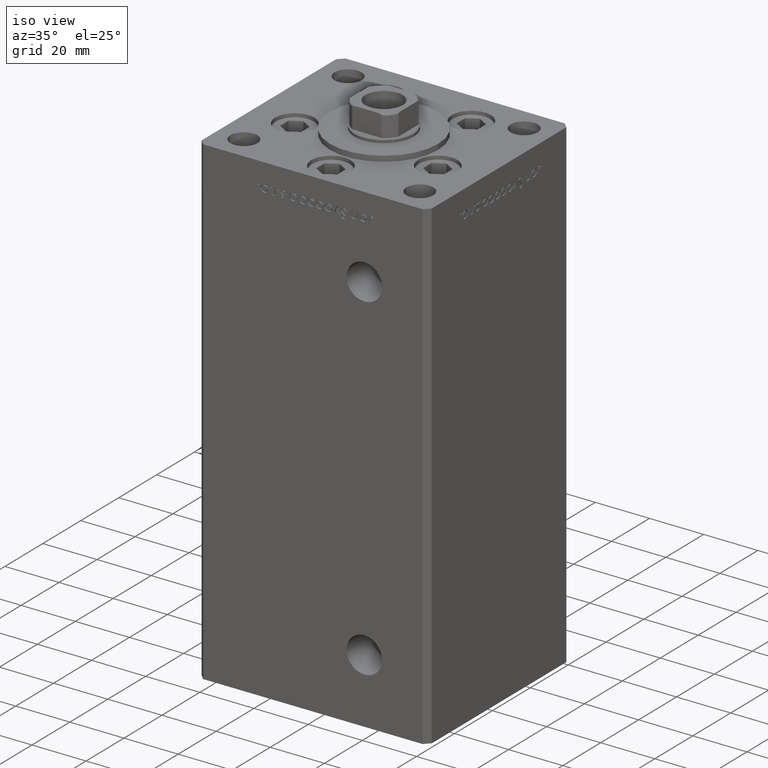
[diagram: clean part render]
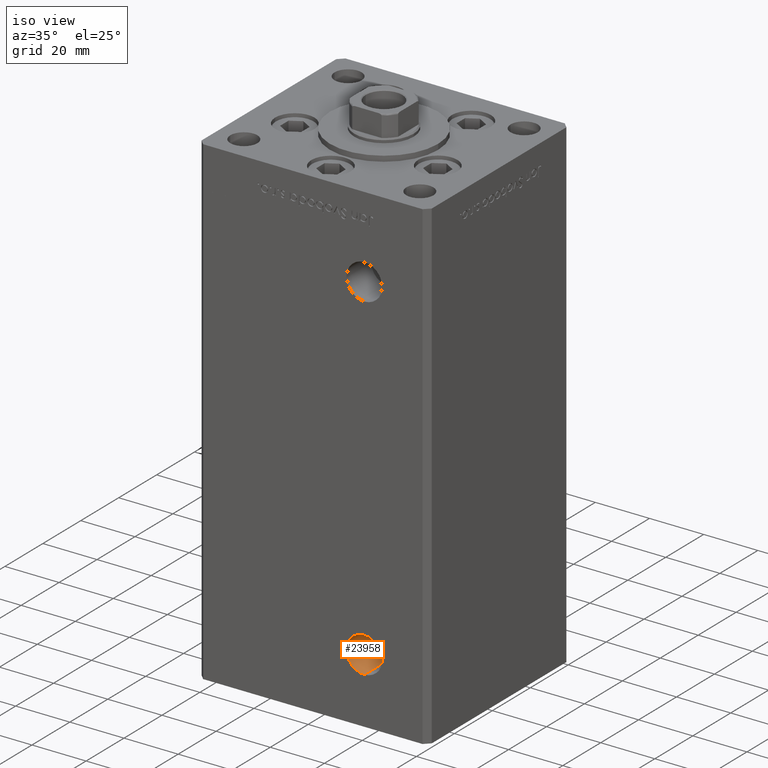
[diagram: same view with one face highlighted and labeled with its STEP entity id]
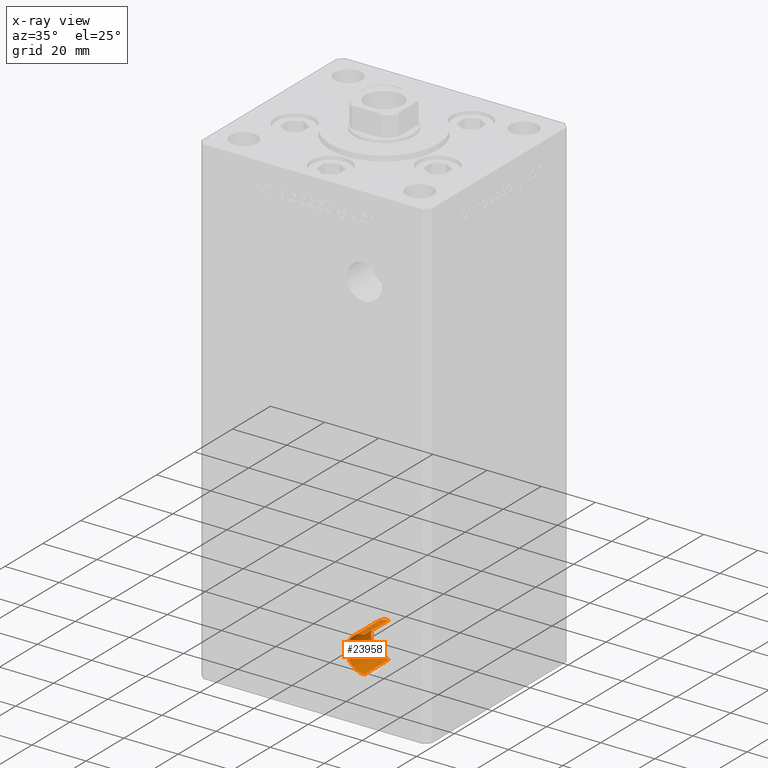
[diagram: x-ray of the same camera — body ghosted, the highlighted face saturated]
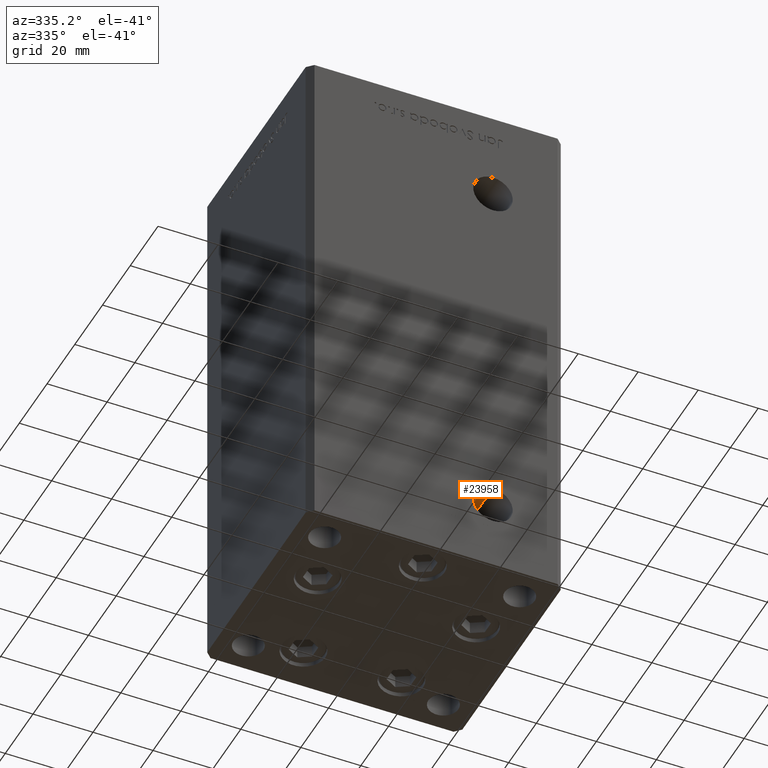
[diagram: same view with one face highlighted and labeled with its STEP entity id]
A machine part, iso view. The second image highlights one B-rep face of the part: STEP entity #23958.
The next image is the same camera in x-ray: the body ghosted, the highlighted face saturated — about 0% of this face is hidden behind the body in this view.
A second angle (auxiliary view) of the same face is appended — the face is thin or edge-on in the first view.
In plain terms, the highlighted cylindrical surface (edge-blend (fillet) strip) has radius 6.58 mm, axis along (-0, -1, -0).
Its self-contained STEP definition (entity closure, byte-faithful):
#551 = DIRECTION ( 'NONE',  ( -0.000000000000000000, -1.000000000000000000, -0.000000000000000000 ) ) ;
#730 = CARTESIAN_POINT ( 'NONE',  ( 18.99999999999998934, -24.50000000000000711, 15.58000000000000718 ) ) ;
#814 = CARTESIAN_POINT ( 'NONE',  ( 18.99999999999998934, -24.50000000000000711, 9.000000000000007105 ) ) ;
#2460 = ORIENTED_EDGE ( 'NONE', *, *, #29844, .F. ) ;
#4720 = DIRECTION ( 'NONE',  ( 0.000000000000000000, 0.000000000000000000, -1.000000000000000000 ) ) ;
#7351 = ORIENTED_EDGE ( 'NONE', *, *, #22567, .T. ) ;
#7678 = VERTEX_POINT ( 'NONE', #41949 ) ;
#8052 = VERTEX_POINT ( 'NONE', #10006 ) ;
#8836 = LINE ( 'NONE', #48181, #11787 ) ;
#9187 = DIRECTION ( 'NONE',  ( -0.000000000000000000, -1.000000000000000000, -0.000000000000000000 ) ) ;
#9695 = AXIS2_PLACEMENT_3D ( 'NONE', #814, #551, #34258 ) ;
#10006 = CARTESIAN_POINT ( 'NONE',  ( 18.99999999999998934, -37.50000000000000711, 2.420000000000009699 ) ) ;
#10492 = CYLINDRICAL_SURFACE ( 'NONE', #9695, 6.579999999999998295 ) ;
#10569 = EDGE_CURVE ( 'NONE', #17783, #8052, #37893, .T. ) ;
#11787 = VECTOR ( 'NONE', #27882, 1000.000000000000000 ) ;
#13104 = CARTESIAN_POINT ( 'NONE',  ( 18.99999999999998934, -37.50000000000000711, 15.58000000000000718 ) ) ;
#15576 = DIRECTION ( 'NONE',  ( 0.000000000000000000, -1.000000000000000000, 0.000000000000000000 ) ) ;
#17783 = VERTEX_POINT ( 'NONE', #13104 ) ;
#20680 = AXIS2_PLACEMENT_3D ( 'NONE', #21397, #24831, #4720 ) ;
#21397 = CARTESIAN_POINT ( 'NONE',  ( 18.99999999999998934, -24.50000000000000711, 9.000000000000007105 ) ) ;
#21918 = ORIENTED_EDGE ( 'NONE', *, *, #10569, .T. ) ;
#22567 = EDGE_CURVE ( 'NONE', #7678, #17783, #25311, .T. ) ;
#23958 = ADVANCED_FACE ( 'NONE', ( #50609 ), #10492, .F. ) ;
#24136 = CARTESIAN_POINT ( 'NONE',  ( 18.99999999999998934, -24.50000000000000711, 2.420000000000009699 ) ) ;
#24831 = DIRECTION ( 'NONE',  ( 0.000000000000000000, -1.000000000000000000, 0.000000000000000000 ) ) ;
#25311 = LINE ( 'NONE', #730, #29901 ) ;
#27882 = DIRECTION ( 'NONE',  ( -0.000000000000000000, -1.000000000000000000, -0.000000000000000000 ) ) ;
#29844 = EDGE_CURVE ( 'NONE', #7678, #44924, #36687, .T. ) ;
#29901 = VECTOR ( 'NONE', #9187, 1000.000000000000000 ) ;
#30396 = EDGE_LOOP ( 'NONE', ( #2460, #7351, #21918, #50913 ) ) ;
#34258 = DIRECTION ( 'NONE',  ( 0.000000000000000000, 0.000000000000000000, -1.000000000000000000 ) ) ;
#36687 = CIRCLE ( 'NONE', #20680, 6.579999999999998295 ) ;
#37893 = CIRCLE ( 'NONE', #44610, 6.579999999999998295 ) ;
#41949 = CARTESIAN_POINT ( 'NONE',  ( 18.99999999999998934, -24.50000000000000711, 15.58000000000000718 ) ) ;
#43216 = EDGE_CURVE ( 'NONE', #44924, #8052, #8836, .T. ) ;
#44610 = AXIS2_PLACEMENT_3D ( 'NONE', #48021, #15576, #45028 ) ;
#44924 = VERTEX_POINT ( 'NONE', #24136 ) ;
#45028 = DIRECTION ( 'NONE',  ( 0.000000000000000000, 0.000000000000000000, -1.000000000000000000 ) ) ;
#48021 = CARTESIAN_POINT ( 'NONE',  ( 18.99999999999998934, -37.50000000000000711, 9.000000000000007105 ) ) ;
#48181 = CARTESIAN_POINT ( 'NONE',  ( 18.99999999999998934, -24.50000000000000711, 2.420000000000009699 ) ) ;
#50609 = FACE_OUTER_BOUND ( 'NONE', #30396, .T. ) ;
#50913 = ORIENTED_EDGE ( 'NONE', *, *, #43216, .F. ) ;